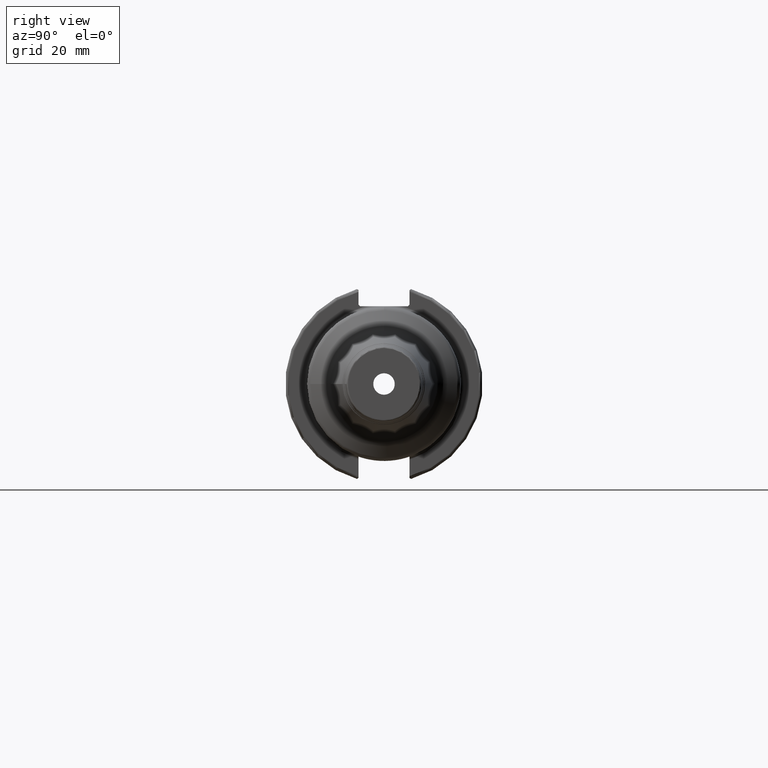
[diagram: clean part render]
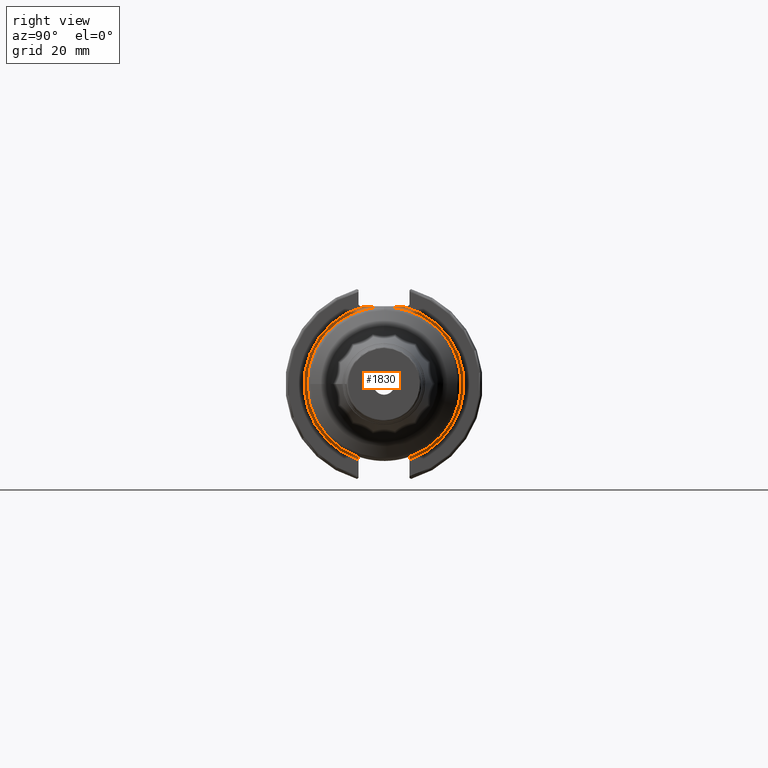
[diagram: same view with one face highlighted and labeled with its STEP entity id]
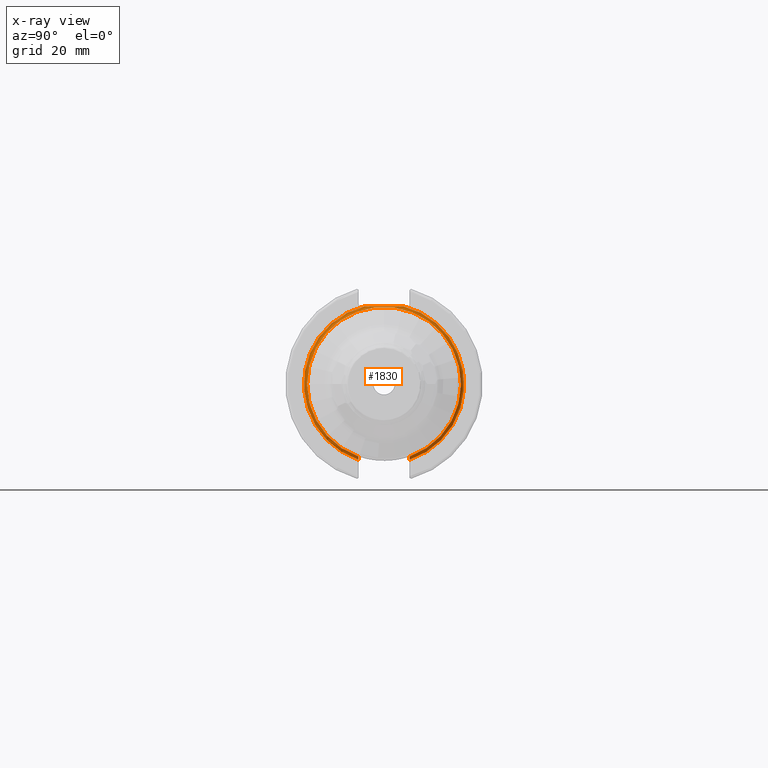
[diagram: x-ray of the same camera — body ghosted, the highlighted face saturated]
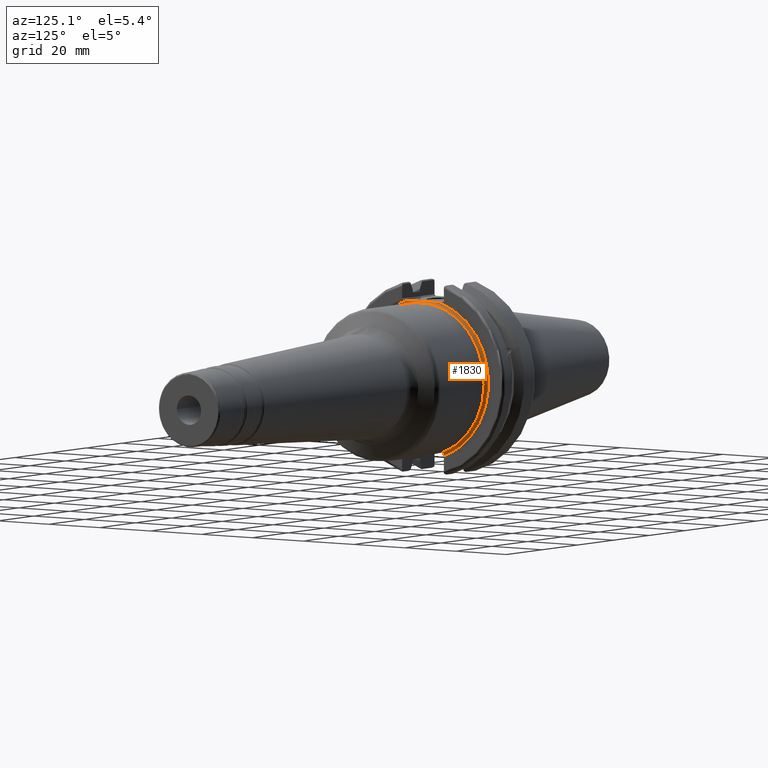
[diagram: same view with one face highlighted and labeled with its STEP entity id]
A machine part, right view. The second image highlights one B-rep face of the part: STEP entity #1830.
The next image is the same camera in x-ray: the body ghosted, the highlighted face saturated — about 3% of this face is hidden behind the body in this view.
A second angle (auxiliary view) of the same face is appended — the face is thin or edge-on in the first view.
In plain terms, the highlighted toroidal blend (fillet) surface has major radius 25.75 mm and minor (blend) radius 1 mm.
Its self-contained STEP definition (entity closure, byte-faithful):
#96=TOROIDAL_SURFACE('',#2021,25.75,1.);
#123=B_SPLINE_CURVE_WITH_KNOTS('',3,(#3025,#3026,#3027,#3028,#3029,#3030,
#3031,#3032,#3033,#3034),.UNSPECIFIED.,.F.,.F.,(4,2,2,2,4),(1.28229186042809,
1.47392183654147,1.862003561099,2.25008528565653,2.44171526176991),
 .UNSPECIFIED.);
#124=B_SPLINE_CURVE_WITH_KNOTS('',3,(#3037,#3038,#3039,#3040,#3041,#3042,
#3043,#3044,#3045,#3046),.UNSPECIFIED.,.F.,.F.,(4,2,2,2,4),(0.152036209068872,
0.19179652975479,0.230554749961229,0.268011696377573,0.304368806480559),
 .UNSPECIFIED.);
#125=B_SPLINE_CURVE_WITH_KNOTS('',3,(#3048,#3049,#3050,#3051,#3052,#3053,
#3054,#3055,#3056,#3057),.UNSPECIFIED.,.F.,.F.,(4,2,2,2,4),(0.304368806480559,
0.340725916583545,0.378182862999889,0.416941083206328,0.456701403892246),
 .UNSPECIFIED.);
#210=FACE_OUTER_BOUND('',#318,.T.);
#318=EDGE_LOOP('',(#1359,#1360,#1361,#1362,#1363,#1364,#1365));
#607=CIRCLE('',#1943,24.75);
#608=CIRCLE('',#1944,24.75);
#663=CIRCLE('',#2022,25.75);
#664=CIRCLE('',#2023,25.75);
#732=VERTEX_POINT('',#2861);
#733=VERTEX_POINT('',#2862);
#738=VERTEX_POINT('',#2890);
#781=VERTEX_POINT('',#3023);
#782=VERTEX_POINT('',#3024);
#783=VERTEX_POINT('',#3035);
#784=VERTEX_POINT('',#3047);
#932=EDGE_CURVE('',#732,#738,#607,.T.);
#933=EDGE_CURVE('',#738,#733,#608,.T.);
#998=EDGE_CURVE('',#781,#782,#123,.F.);
#999=EDGE_CURVE('',#781,#783,#663,.T.);
#1000=EDGE_CURVE('',#732,#783,#124,.F.);
#1001=EDGE_CURVE('',#733,#784,#125,.T.);
#1002=EDGE_CURVE('',#784,#782,#664,.T.);
#1359=ORIENTED_EDGE('',*,*,#998,.F.);
#1360=ORIENTED_EDGE('',*,*,#999,.T.);
#1361=ORIENTED_EDGE('',*,*,#1000,.F.);
#1362=ORIENTED_EDGE('',*,*,#932,.T.);
#1363=ORIENTED_EDGE('',*,*,#933,.T.);
#1364=ORIENTED_EDGE('',*,*,#1001,.T.);
#1365=ORIENTED_EDGE('',*,*,#1002,.T.);
#1830=ADVANCED_FACE('',(#210),#96,.F.);
#1943=AXIS2_PLACEMENT_3D('',#2892,#2209,#2210);
#1944=AXIS2_PLACEMENT_3D('',#2893,#2211,#2212);
#2021=AXIS2_PLACEMENT_3D('',#3022,#2375,#2376);
#2022=AXIS2_PLACEMENT_3D('',#3036,#2377,#2378);
#2023=AXIS2_PLACEMENT_3D('',#3058,#2379,#2380);
#2209=DIRECTION('center_axis',(-1.,0.,0.));
#2210=DIRECTION('ref_axis',(0.,6.12323399573677E-17,1.));
#2211=DIRECTION('center_axis',(-1.,0.,0.));
#2212=DIRECTION('ref_axis',(0.,6.12323399573677E-17,1.));
#2375=DIRECTION('center_axis',(-1.,0.,0.));
#2376=DIRECTION('ref_axis',(0.,0.,1.));
#2377=DIRECTION('center_axis',(1.,0.,0.));
#2378=DIRECTION('ref_axis',(0.,6.12323399573677E-17,1.));
#2379=DIRECTION('center_axis',(1.,0.,0.));
#2380=DIRECTION('ref_axis',(0.,6.12323399573677E-17,1.));
#2861=CARTESIAN_POINT('',(20.05,-8.19,-23.3556502799644));
#2862=CARTESIAN_POINT('',(20.05,8.18999999999999,-23.3556502799644));
#2890=CARTESIAN_POINT('',(20.05,-24.75,-3.0310008278897E-15));
#2892=CARTESIAN_POINT('Origin',(20.05,0.,0.));
#2893=CARTESIAN_POINT('Origin',(20.05,0.,0.));
#3022=CARTESIAN_POINT('Origin',(20.05,0.,0.));
#3023=CARTESIAN_POINT('',(19.05,-6.16948133962654,25.));
#3024=CARTESIAN_POINT('',(19.05,6.16948133962654,25.));
#3025=CARTESIAN_POINT('Ctrl Pts',(19.05,6.16948133962654,25.));
#3026=CARTESIAN_POINT('Ctrl Pts',(19.05,5.53071475258195,25.));
#3027=CARTESIAN_POINT('Ctrl Pts',(19.0917093675371,4.76533047486056,25.));
#3028=CARTESIAN_POINT('Ctrl Pts',(19.2334466867335,2.83816328553263,25.));
#3029=CARTESIAN_POINT('Ctrl Pts',(19.3885621722339,1.29360574852511,25.));
#3030=CARTESIAN_POINT('Ctrl Pts',(19.3885621722339,-1.29360574852511,25.));
#3031=CARTESIAN_POINT('Ctrl Pts',(19.2334466867335,-2.83816328553263,25.));
#3032=CARTESIAN_POINT('Ctrl Pts',(19.0917093675371,-4.76533047486056,25.));
#3033=CARTESIAN_POINT('Ctrl Pts',(19.05,-5.53071475258195,25.));
#3034=CARTESIAN_POINT('Ctrl Pts',(19.05,-6.16948133962654,25.));
#3035=CARTESIAN_POINT('',(19.05,-8.19,-24.4128326910254));
#3036=CARTESIAN_POINT('Origin',(19.05,0.,0.));
#3037=CARTESIAN_POINT('Ctrl Pts',(19.05,-8.19,-24.4128326910254));
#3038=CARTESIAN_POINT('Ctrl Pts',(19.05,-8.19,-24.280298288739));
#3039=CARTESIAN_POINT('Ctrl Pts',(19.079885359023,-8.19,-24.124090110551));
#3040=CARTESIAN_POINT('Ctrl Pts',(19.177275426903,-8.19,-23.8811560320461));
#3041=CARTESIAN_POINT('Ctrl Pts',(19.2609009617474,-8.19,-23.7506111583087));
#3042=CARTESIAN_POINT('Ctrl Pts',(19.4373931081247,-8.19,-23.5678758115065));
#3043=CARTESIAN_POINT('Ctrl Pts',(19.5602603745075,-8.19,-23.4821320058467));
#3044=CARTESIAN_POINT('Ctrl Pts',(19.7864204604307,-8.19,-23.3852265342659));
#3045=CARTESIAN_POINT('Ctrl Pts',(19.92880963299,-8.19,-23.3556502799644));
#3046=CARTESIAN_POINT('Ctrl Pts',(20.05,-8.19,-23.3556502799644));
#3047=CARTESIAN_POINT('',(19.05,8.19,-24.4128326910254));
#3048=CARTESIAN_POINT('Ctrl Pts',(20.05,8.19,-23.3556502799644));
#3049=CARTESIAN_POINT('Ctrl Pts',(19.92880963299,8.19,-23.3556502799644));
#3050=CARTESIAN_POINT('Ctrl Pts',(19.7864204604307,8.19,-23.3852265342659));
#3051=CARTESIAN_POINT('Ctrl Pts',(19.5602603745075,8.19,-23.4821320058467));
#3052=CARTESIAN_POINT('Ctrl Pts',(19.4373931081247,8.19,-23.5678758115065));
#3053=CARTESIAN_POINT('Ctrl Pts',(19.2609009617474,8.19,-23.7506111583087));
#3054=CARTESIAN_POINT('Ctrl Pts',(19.177275426903,8.19,-23.8811560320461));
#3055=CARTESIAN_POINT('Ctrl Pts',(19.079885359023,8.19,-24.124090110551));
#3056=CARTESIAN_POINT('Ctrl Pts',(19.05,8.19,-24.280298288739));
#3057=CARTESIAN_POINT('Ctrl Pts',(19.05,8.19,-24.4128326910254));
#3058=CARTESIAN_POINT('Origin',(19.05,0.,0.));